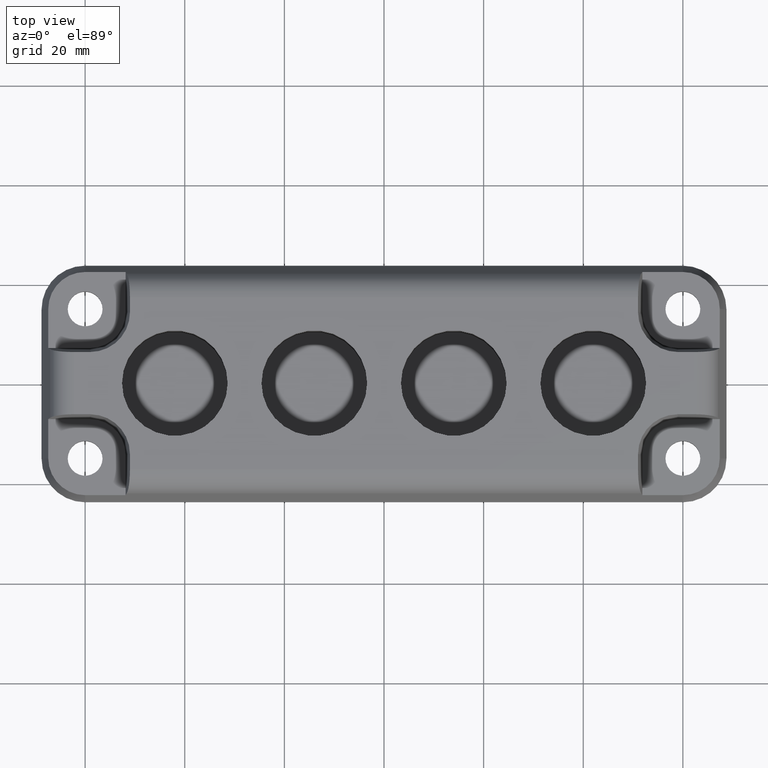
[diagram: clean part render]
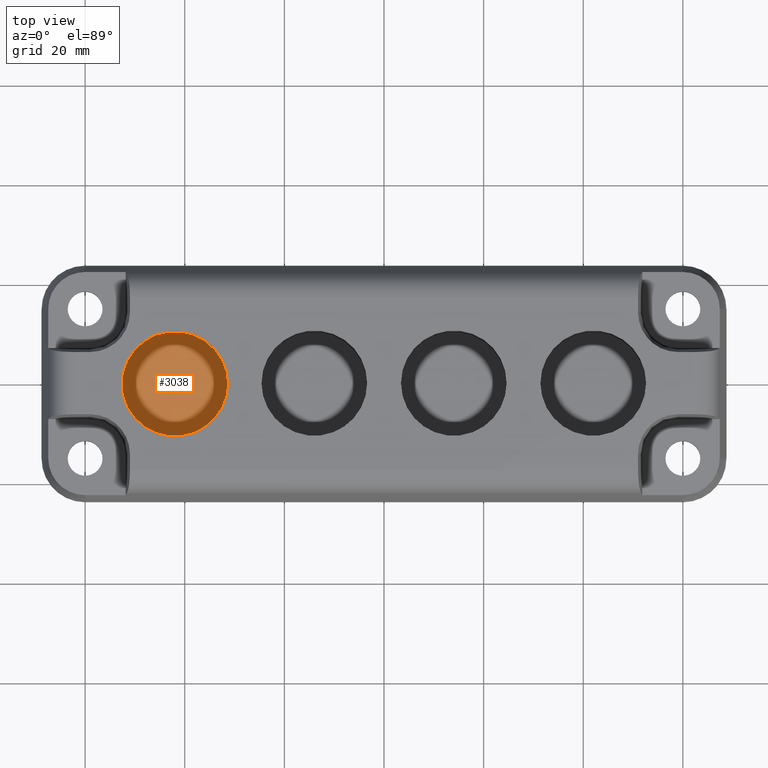
[diagram: same view with one face highlighted and labeled with its STEP entity id]
A machine part, top view. The second image highlights one B-rep face of the part: STEP entity #3038.
In plain terms, the highlighted planar face has unit normal (-0, 0, 1).
Its self-contained STEP definition (entity closure, byte-faithful):
#84 = VERTEX_POINT ( 'NONE', #2631 ) ;
#98 = DIRECTION ( 'NONE',  ( 1.000000000000000000, 0.0000000000000000000, 0.0000000000000000000 ) ) ;
#104 = AXIS2_PLACEMENT_3D ( 'NONE', #1539, #321, #4048 ) ;
#207 = CARTESIAN_POINT ( 'NONE',  ( -42.00000000000001400, 0.0000000000000000000, -7.000000000000006200 ) ) ;
#301 = ORIENTED_EDGE ( 'NONE', *, *, #2502, .T. ) ;
#321 = DIRECTION ( 'NONE',  ( -3.081487911019574600E-033, 3.118160315277577000E-032, 1.000000000000000000 ) ) ;
#703 = DIRECTION ( 'NONE',  ( 3.081487911019577400E-033, 3.118160315277577000E-032, 1.000000000000000000 ) ) ;
#707 = AXIS2_PLACEMENT_3D ( 'NONE', #207, #1429, #3987 ) ;
#1294 = CARTESIAN_POINT ( 'NONE',  ( -31.40000000000001300, 0.0000000000000000000, -7.000000000000006200 ) ) ;
#1429 = DIRECTION ( 'NONE',  ( 3.081487911019577400E-033, 3.118160315277577000E-032, 1.000000000000000000 ) ) ;
#1539 = CARTESIAN_POINT ( 'NONE',  ( -42.00000000000001400, 0.0000000000000000000, -7.000000000000006200 ) ) ;
#1551 = CIRCLE ( 'NONE', #707, 10.60000000000000500 ) ;
#2502 = EDGE_CURVE ( 'NONE', #84, #3167, #1551, .T. ) ;
#2579 = CARTESIAN_POINT ( 'NONE',  ( -42.00000000000001400, 0.0000000000000000000, -7.000000000000006200 ) ) ;
#2631 = CARTESIAN_POINT ( 'NONE',  ( -52.60000000000001600, 1.298125607096195400E-015, -7.000000000000006200 ) ) ;
#2939 = EDGE_CURVE ( 'NONE', #3167, #84, #3093, .T. ) ;
#3038 = ADVANCED_FACE ( 'NONE', ( #3188 ), #3426, .T. ) ;
#3093 = CIRCLE ( 'NONE', #3279, 10.60000000000000500 ) ;
#3157 = ORIENTED_EDGE ( 'NONE', *, *, #2939, .T. ) ;
#3167 = VERTEX_POINT ( 'NONE', #1294 ) ;
#3188 = FACE_OUTER_BOUND ( 'NONE', #3855, .T. ) ;
#3279 = AXIS2_PLACEMENT_3D ( 'NONE', #2579, #703, #98 ) ;
#3426 = PLANE ( 'NONE',  #104 ) ;
#3855 = EDGE_LOOP ( 'NONE', ( #3157, #301 ) ) ;
#3987 = DIRECTION ( 'NONE',  ( 1.000000000000000000, 0.0000000000000000000, 0.0000000000000000000 ) ) ;
#4048 = DIRECTION ( 'NONE',  ( 1.000000000000000000, 0.0000000000000000000, 3.081487911019574600E-033 ) ) ;